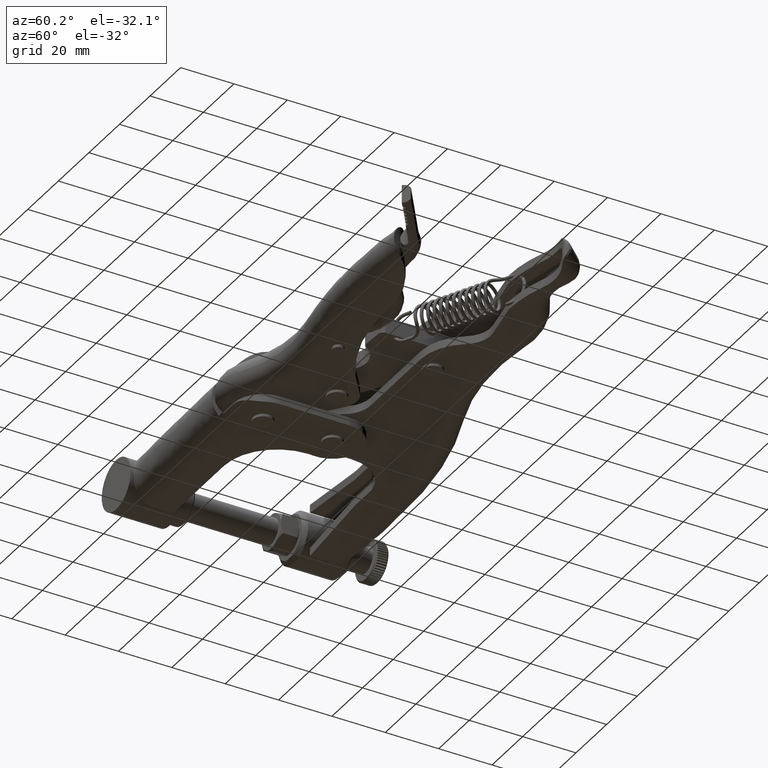
[diagram: clean part render]
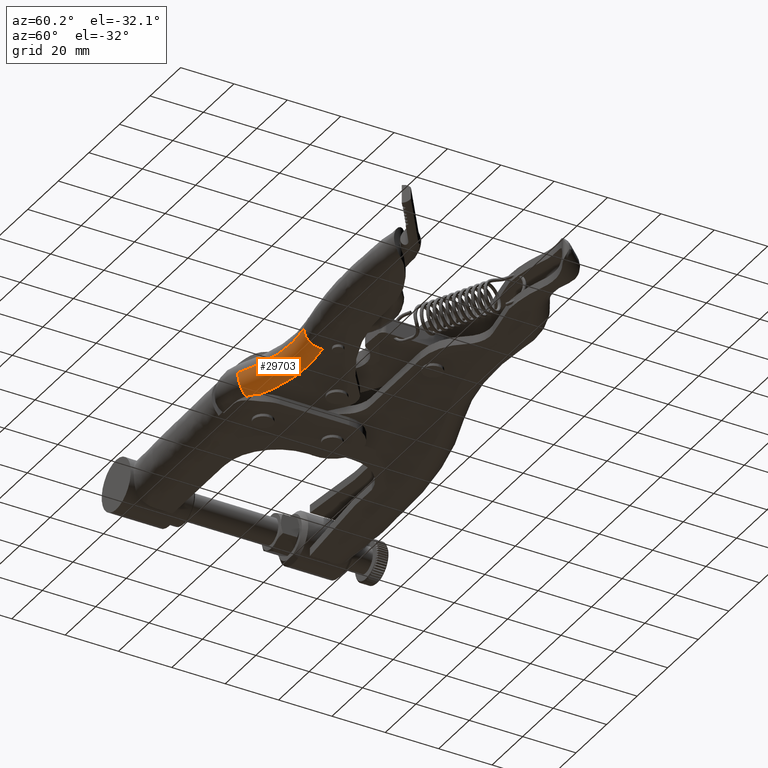
[diagram: same view with one face highlighted and labeled with its STEP entity id]
A machine part, auxiliary view. The second image highlights one B-rep face of the part: STEP entity #29703.
In plain terms, the highlighted toroidal blend (fillet) surface has major radius 56.5 mm and minor (blend) radius 6.5 mm.
Its self-contained STEP definition (entity closure, byte-faithful):
#227 = AXIS2_PLACEMENT_3D ( 'NONE', #2454, #19006, #4818 ) ;
#1179 = DIRECTION ( 'NONE',  ( -0.9806739053872675100, 0.1956494091288925600, -1.646367807759176600E-020 ) ) ;
#2454 = CARTESIAN_POINT ( 'NONE',  ( 31.83004216632918200, -83.58896088391962600, -6.500000000000000000 ) ) ;
#3989 = DIRECTION ( 'NONE',  ( -1.441908044846661800E-020, 1.187461875016582800E-020, 1.000000000000000000 ) ) ;
#4668 = CIRCLE ( 'NONE', #25354, 6.499999999999998200 ) ;
#4818 = DIRECTION ( 'NONE',  ( 0.7893684452995102200, 0.6139197484732300500, 0.0000000000000000000 ) ) ;
#6445 = EDGE_LOOP ( 'NONE', ( #20525, #9580, #27096, #20466 ) ) ;
#9580 = ORIENTED_EDGE ( 'NONE', *, *, #19282, .T. ) ;
#11212 = CARTESIAN_POINT ( 'NONE',  ( 4.498774956637918300, -34.13947319483966000, -6.500000000000000000 ) ) ;
#12899 = CARTESIAN_POINT ( 'NONE',  ( 31.83004216632918200, -83.58896088391962600, -1.264825080009170500E-015 ) ) ;
#13263 = CARTESIAN_POINT ( 'NONE',  ( 4.498774956637912000, -34.13947319483966000, -4.697859461177448300E-016 ) ) ;
#13877 = FACE_OUTER_BOUND ( 'NONE', #6445, .T. ) ;
#14024 = CARTESIAN_POINT ( 'NONE',  ( 41.61251262277383500, -34.55526561455611300, -1.265266282217909900E-015 ) ) ;
#14218 = CARTESIAN_POINT ( 'NONE',  ( 7.643080033859027000, -39.82835230951256700, -1.265693474305058900E-015 ) ) ;
#14456 = AXIS2_PLACEMENT_3D ( 'NONE', #15352, #1179, #17738 ) ;
#15172 = CARTESIAN_POINT ( 'NONE',  ( 42.88423378211162900, -28.18088522953887000, -6.500000000000000000 ) ) ;
#15279 = DIRECTION ( 'NONE',  ( 1.000000000000000000, 0.0000000000000000000, 1.441908044846770400E-020 ) ) ;
#15352 = CARTESIAN_POINT ( 'NONE',  ( 42.88423378211164300, -28.18088522953887000, -4.693032190592662800E-016 ) ) ;
#15367 = VERTEX_POINT ( 'NONE', #15172 ) ;
#15577 = VERTEX_POINT ( 'NONE', #11212 ) ;
#15640 = DIRECTION ( 'NONE',  ( -0.4837392426494018800, 0.8752121714881387900, 1.776356839400251300E-015 ) ) ;
#15879 = DIRECTION ( 'NONE',  ( -0.7893684452995102200, -0.6139197484732302800, -4.091904159937350300E-021 ) ) ;
#16038 = EDGE_CURVE ( 'NONE', #15367, #23549, #30127, .T. ) ;
#17738 = DIRECTION ( 'NONE',  ( 0.1956494091288927800, 0.9806739053872674000, 0.0000000000000000000 ) ) ;
#17923 = EDGE_CURVE ( 'NONE', #15367, #15577, #30060, .T. ) ;
#19006 = DIRECTION ( 'NONE',  ( -1.441908044846661800E-020, 1.187461875016582800E-020, 1.000000000000000000 ) ) ;
#19282 = EDGE_CURVE ( 'NONE', #23549, #25759, #19315, .T. ) ;
#19315 = CIRCLE ( 'NONE', #26009, 50.00000000000012100 ) ;
#19421 = TOROIDAL_SURFACE ( 'NONE', #24575, 56.50000000000012800, 6.499999999999999100 ) ;
#20466 = ORIENTED_EDGE ( 'NONE', *, *, #17923, .F. ) ;
#20525 = ORIENTED_EDGE ( 'NONE', *, *, #16038, .T. ) ;
#23549 = VERTEX_POINT ( 'NONE', #14024 ) ;
#24575 = AXIS2_PLACEMENT_3D ( 'NONE', #27594, #3989, #15879 ) ;
#25354 = AXIS2_PLACEMENT_3D ( 'NONE', #13263, #29841, #15640 ) ;
#25759 = VERTEX_POINT ( 'NONE', #14218 ) ;
#26009 = AXIS2_PLACEMENT_3D ( 'NONE', #12899, #29481, #15279 ) ;
#27096 = ORIENTED_EDGE ( 'NONE', *, *, #28245, .F. ) ;
#27594 = CARTESIAN_POINT ( 'NONE',  ( 31.83004216632918200, -83.58896088391962600, -4.688046605633909400E-016 ) ) ;
#28245 = EDGE_CURVE ( 'NONE', #15577, #25759, #4668, .T. ) ;
#29481 = DIRECTION ( 'NONE',  ( -1.441908044846661800E-020, 1.187461875016582800E-020, 1.000000000000000000 ) ) ;
#29703 = ADVANCED_FACE ( 'NONE', ( #13877 ), #19421, .T. ) ;
#29841 = DIRECTION ( 'NONE',  ( -0.8752121714881386800, -0.4837392426494018200, -6.875535629209028900E-021 ) ) ;
#30060 = CIRCLE ( 'NONE', #227, 56.50000000000014200 ) ;
#30127 = CIRCLE ( 'NONE', #14456, 6.500000000000000900 ) ;